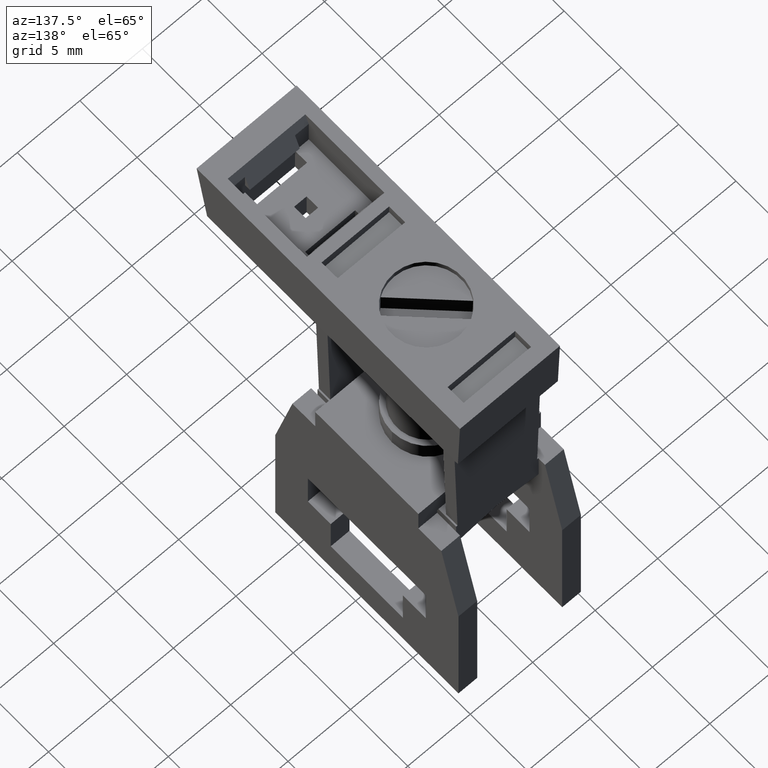
[diagram: clean part render]
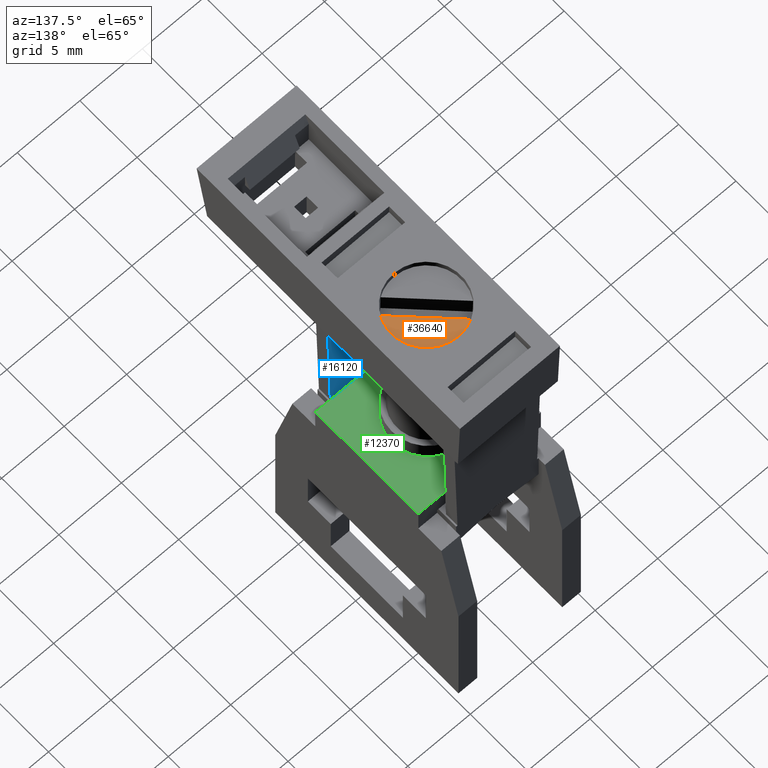
[diagram: same view with three faces highlighted in distinct colors, each labeled with its STEP entity id]
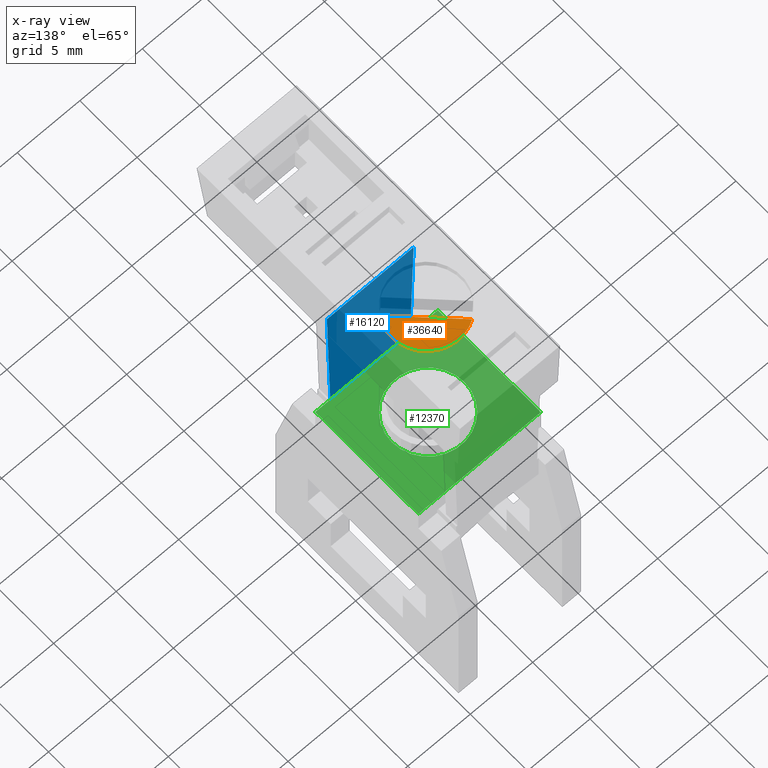
[diagram: x-ray of the same camera — body ghosted, the three highlighted faces saturated]
A machine part, auxiliary view with three faces highlighted in distinct colors.
The next image is the same camera in x-ray (body ghosted, the three faces saturated) — at least one of them is partly hidden behind the body in this view.
Their STEP definitions:

[orange] entity #36640 — the highlighted planar face has unit normal (0, 0, -1).
#35260=CARTESIAN_POINT('',(-4.76272567438276,34.1999997566941,
5.20000000000001));
#35270=VERTEX_POINT('',#35260);
#35300=CARTESIAN_POINT('',(-4.76272567438276,34.1999997566941,
8.00000000000001));
#35310=DIRECTION('',(-6.41057822130211E-32,-1.,-1.04692687324466E-15));
#35320=DIRECTION('',(6.12323399573677E-17,-1.04692687324466E-15,1.));
#35330=AXIS2_PLACEMENT_3D('',#35300,#35310,#35320);
#35340=CIRCLE('',#35330,2.8);
#35350=CARTESIAN_POINT('',(-6.2723695662522,34.1999997566941,
5.64182797070671));
#35360=VERTEX_POINT('',#35350);
#35370=EDGE_CURVE('',#35360,#35270,#35340,.T.);
#36460=CARTESIAN_POINT('',(-4.76272567438276,34.1999997566941,
6.52310742846519));
#36470=DIRECTION('',(0.,-1.,-0.));
#36480=DIRECTION('',(-6.12323399573677E-17,0.,-1.));
#36490=AXIS2_PLACEMENT_3D('',#36460,#36470,#36480);
#36500=PLANE('',#36490);
#36510=ORIENTED_EDGE('',*,*,#35370,.F.);
#36520=CARTESIAN_POINT('',(-2.40455364508946,34.1999997566941,
9.50964389186945));
#36530=VERTEX_POINT('',#36520);
#36540=EDGE_CURVE('',#35270,#36530,#35340,.T.);
#36550=ORIENTED_EDGE('',*,*,#36540,.F.);
#36560=CARTESIAN_POINT('',(-11.9141975369589,34.1999997566941,
3.5527136788005E-15));
#36570=DIRECTION('',(-0.707106781186548,0.,-0.707106781186548));
#36580=VECTOR('',#36570,1.);
#36590=LINE('',#36560,#36580);
#36600=EDGE_CURVE('',#36530,#35360,#36590,.T.);
#36610=ORIENTED_EDGE('',*,*,#36600,.F.);
#36620=EDGE_LOOP('',(#36610,#36550,#36510));
#36630=FACE_OUTER_BOUND('',#36620,.T.);
#36640=ADVANCED_FACE('',(#36630),#36500,.F.);

[blue] entity #16120 — the highlighted planar face has unit normal (0, -1, -0).
#9560=CARTESIAN_POINT('',(-8.37057532948656,29.4999997566941,13.05));
#9570=VERTEX_POINT('',#9560);
#9600=CARTESIAN_POINT('',(0.137274325617248,29.4999997566941,13.05));
#9610=DIRECTION('',(1.,0.,0.));
#9620=VECTOR('',#9610,1.);
#9630=LINE('',#9600,#9620);
#9640=CARTESIAN_POINT('',(-1.42942467051348,29.4999997566941,13.05));
#9650=VERTEX_POINT('',#9640);
#9660=EDGE_CURVE('',#9570,#9650,#9630,.T.);
#14780=CARTESIAN_POINT('',(-1.70955030898592,17.8718018669666,13.05));
#14790=VERTEX_POINT('',#14780);
#14820=CARTESIAN_POINT('',(-35.9,17.8718018669666,13.05));
#14830=DIRECTION('',(1.,8.26504207797046E-48,0.));
#14840=VECTOR('',#14830,1.);
#14850=LINE('',#14820,#14840);
#14860=CARTESIAN_POINT('',(-8.09044969101411,17.8718018669666,13.05));
#14870=VERTEX_POINT('',#14860);
#14880=EDGE_CURVE('',#14870,#14790,#14850,.T.);
#15770=CARTESIAN_POINT('',(-2.14008562977365,0.,13.05));
#15780=DIRECTION('',(0.0240832150205709,0.999709957314757,0.));
#15790=VECTOR('',#15780,1.);
#15800=LINE('',#15770,#15790);
#15810=EDGE_CURVE('',#14790,#9650,#15800,.T.);
#15960=CARTESIAN_POINT('',(-35.9,9.93606699851119,13.05));
#15970=DIRECTION('',(0.,0.,1.));
#15980=DIRECTION('',(1.,0.,0.));
#15990=AXIS2_PLACEMENT_3D('',#15960,#15970,#15980);
#16000=PLANE('',#15990);
#16010=ORIENTED_EDGE('',*,*,#15810,.F.);
#16020=ORIENTED_EDGE('',*,*,#9660,.T.);
#16030=CARTESIAN_POINT('',(-7.65991437022638,0.,13.05));
#16040=DIRECTION('',(-0.0240832150205709,0.999709957314757,0.));
#16050=VECTOR('',#16040,1.);
#16060=LINE('',#16030,#16050);
#16070=EDGE_CURVE('',#14870,#9570,#16060,.T.);
#16080=ORIENTED_EDGE('',*,*,#16070,.T.);
#16090=ORIENTED_EDGE('',*,*,#14880,.F.);
#16100=EDGE_LOOP('',(#16090,#16080,#16020,#16010));
#16110=FACE_OUTER_BOUND('',#16100,.T.);
#16120=ADVANCED_FACE('',(#16110),#16000,.F.);

[green] entity #12370 — the highlighted planar face has unit normal (-0, -0, 1).
#11630=CARTESIAN_POINT('',(-7.8,19.5,8.00000000000001));
#11640=VERTEX_POINT('',#11630);
#11670=CARTESIAN_POINT('',(-4.90000000000001,19.5,8.00000000000001));
#11680=DIRECTION('',(0.,1.,0.));
#11690=DIRECTION('',(-1.,0.,0.));
#11700=AXIS2_PLACEMENT_3D('',#11670,#11680,#11690);
#11710=CIRCLE('',#11700,2.89999999999999);
#11720=CARTESIAN_POINT('',(-2.00000000000002,19.5,8.00000000000001));
#11730=VERTEX_POINT('',#11720);
#11740=EDGE_CURVE('',#11730,#11640,#11710,.T.);
#11930=CARTESIAN_POINT('',(-8.30000000000001,19.5,3.5527136788005E-15));
#11940=DIRECTION('',(-0.,1.,0.));
#11950=DIRECTION('',(1.,0.,0.));
#11960=AXIS2_PLACEMENT_3D('',#11930,#11940,#11950);
#11970=PLANE('',#11960);
#11980=EDGE_CURVE('',#11640,#11730,#11710,.T.);
#11990=ORIENTED_EDGE('',*,*,#11980,.F.);
#12000=ORIENTED_EDGE('',*,*,#11740,.F.);
#12010=EDGE_LOOP('',(#12000,#11990));
#12020=FACE_BOUND('',#12010,.T.);
#12030=CARTESIAN_POINT('',(-5.32907051820075E-15,19.5,
3.5527136788005E-15));
#12040=DIRECTION('',(0.,0.,-1.));
#12050=VECTOR('',#12040,1.);
#12060=LINE('',#12030,#12050);
#12070=CARTESIAN_POINT('',(-5.32907051820075E-15,19.5,12.5));
#12080=VERTEX_POINT('',#12070);
#12090=CARTESIAN_POINT('',(-5.32907051820075E-15,19.5,3.50000000000001))
;
#12100=VERTEX_POINT('',#12090);
#12110=EDGE_CURVE('',#12080,#12100,#12060,.T.);
#12120=ORIENTED_EDGE('',*,*,#12110,.T.);
#12130=CARTESIAN_POINT('',(-5.32907051820075E-15,19.5,12.5));
#12140=DIRECTION('',(-1.,0.,0.));
#12150=VECTOR('',#12140,1.);
#12160=LINE('',#12130,#12150);
#12170=CARTESIAN_POINT('',(-9.80000000000001,19.5,12.5));
#12180=VERTEX_POINT('',#12170);
#12190=EDGE_CURVE('',#12080,#12180,#12160,.T.);
#12200=ORIENTED_EDGE('',*,*,#12190,.F.);
#12210=CARTESIAN_POINT('',(-9.80000000000001,19.5,3.5527136788005E-15));
#12220=DIRECTION('',(0.,0.,-1.));
#12230=VECTOR('',#12220,1.);
#12240=LINE('',#12210,#12230);
#12250=CARTESIAN_POINT('',(-9.80000000000001,19.5,3.50000000000001));
#12260=VERTEX_POINT('',#12250);
#12270=EDGE_CURVE('',#12180,#12260,#12240,.T.);
#12280=ORIENTED_EDGE('',*,*,#12270,.F.);
#12290=CARTESIAN_POINT('',(-5.32907051820075E-15,19.5,3.50000000000001))
;
#12300=DIRECTION('',(1.,0.,0.));
#12310=VECTOR('',#12300,1.);
#12320=LINE('',#12290,#12310);
#12330=EDGE_CURVE('',#12260,#12100,#12320,.T.);
#12340=ORIENTED_EDGE('',*,*,#12330,.F.);
#12350=EDGE_LOOP('',(#12340,#12280,#12200,#12120));
#12360=FACE_OUTER_BOUND('',#12350,.T.);
#12370=ADVANCED_FACE('',(#12020,#12360),#11970,.T.);